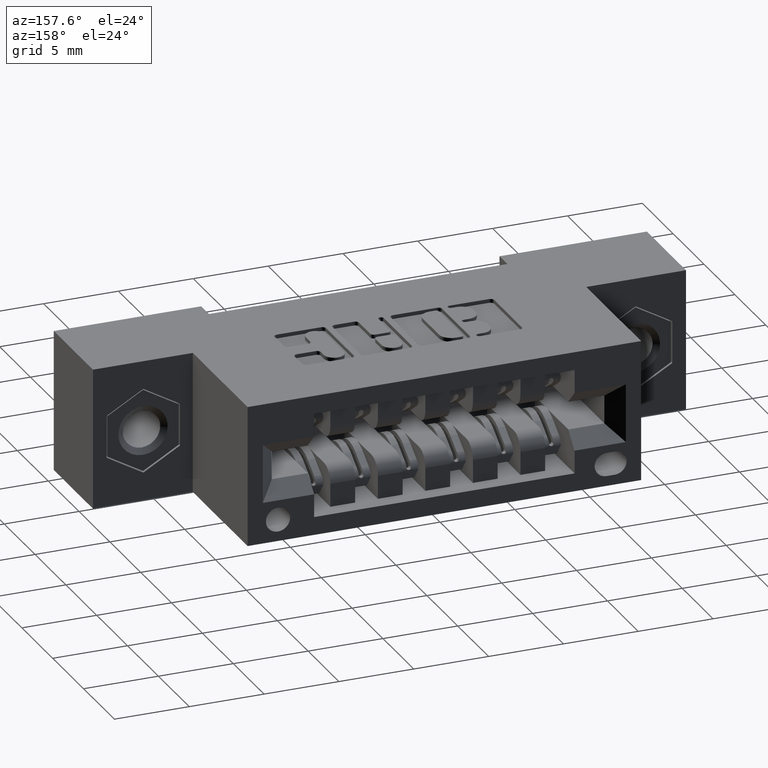
[diagram: clean part render]
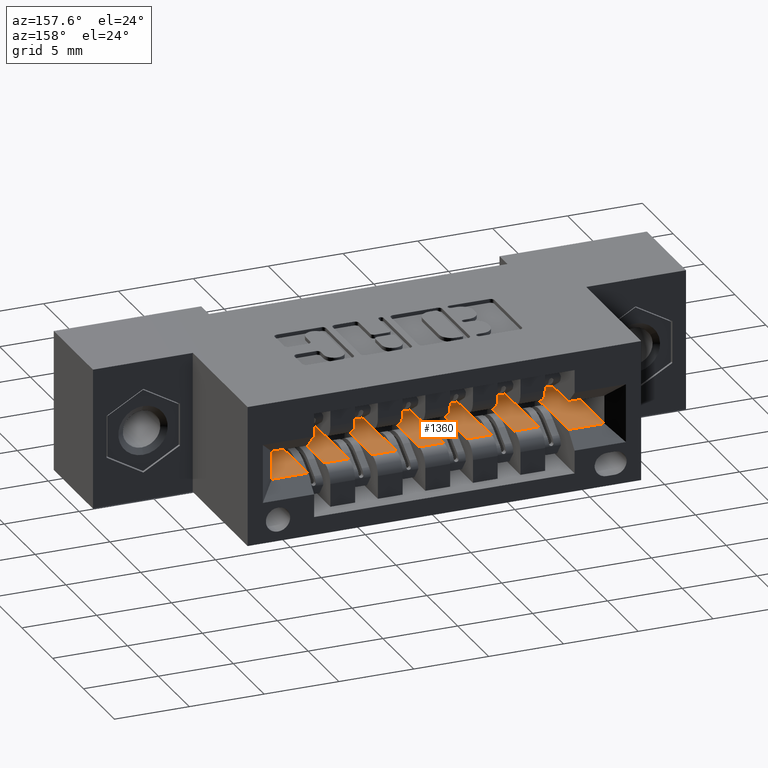
[diagram: same view with one face highlighted and labeled with its STEP entity id]
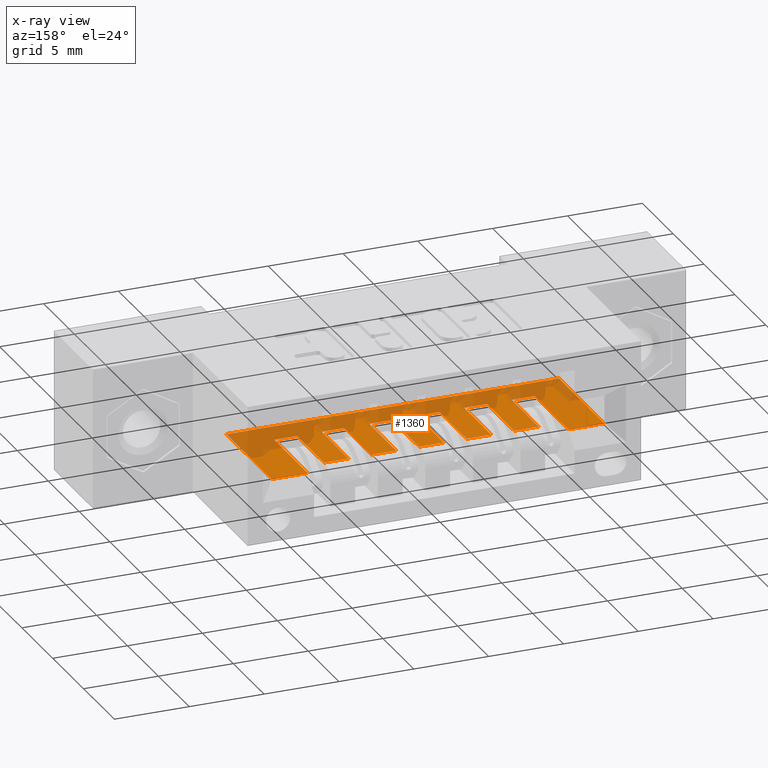
[diagram: x-ray of the same camera — body ghosted, the highlighted face saturated]
A machine part, auxiliary view. The second image highlights one B-rep face of the part: STEP entity #1360.
The next image is the same camera in x-ray: the body ghosted, the highlighted face saturated — about 44% of this face is hidden behind the body in this view.
In plain terms, the highlighted planar face has unit normal (0, 0, -1).
Its self-contained STEP definition (entity closure, byte-faithful):
#3 = AXIS2_PLACEMENT_3D ( 'NONE', #9654, #4967, #2679 ) ;
#43 = VECTOR ( 'NONE', #8289, 39.37007874015748100 ) ;
#65 = DIRECTION ( 'NONE',  ( 0.0000000000000000000, -1.000000000000000000, 0.0000000000000000000 ) ) ;
#185 = VECTOR ( 'NONE', #9659, 39.37007874015748100 ) ;
#191 = CARTESIAN_POINT ( 'NONE',  ( 0.6875000000000000000, 0.5179999999999996800, -0.2220000000000000900 ) ) ;
#221 = LINE ( 'NONE', #6507, #6819 ) ;
#222 = VECTOR ( 'NONE', #9416, 39.37007874015748100 ) ;
#252 = CARTESIAN_POINT ( 'NONE',  ( 1.062500000000000000, 0.5179999999999996800, -0.2220000000000000600 ) ) ;
#295 = ORIENTED_EDGE ( 'NONE', *, *, #2164, .F. ) ;
#438 = VECTOR ( 'NONE', #1218, 39.37007874015748100 ) ;
#549 = LINE ( 'NONE', #2056, #43 ) ;
#717 = EDGE_CURVE ( 'NONE', #1997, #9950, #5492, .T. ) ;
#722 = EDGE_CURVE ( 'NONE', #8810, #1705, #8170, .T. ) ;
#746 = VERTEX_POINT ( 'NONE', #7467 ) ;
#747 = CARTESIAN_POINT ( 'NONE',  ( 0.6224999999999999400, 0.2699999999999999100, -0.2220000000000000900 ) ) ;
#806 = CARTESIAN_POINT ( 'NONE',  ( 1.062500000000000000, 0.3450000000000001400, -0.2219999999999999800 ) ) ;
#818 = ORIENTED_EDGE ( 'NONE', *, *, #3464, .T. ) ;
#899 = EDGE_CURVE ( 'NONE', #1997, #3355, #3538, .T. ) ;
#912 = VECTOR ( 'NONE', #5191, 39.37007874015748100 ) ;
#935 = CARTESIAN_POINT ( 'NONE',  ( 0.5625000000000000000, 0.2699999999999999100, -0.2220000000000000900 ) ) ;
#942 = CARTESIAN_POINT ( 'NONE',  ( 0.4375000000000000600, 0.3450000000000001400, -0.2220000000000000600 ) ) ;
#1015 = CARTESIAN_POINT ( 'NONE',  ( 0.3425000000000000300, 0.2699999999999999100, -0.2220000000000000900 ) ) ;
#1042 = CARTESIAN_POINT ( 'NONE',  ( 0.8724999999999999400, 0.3450000000000001400, -0.2220000000000000900 ) ) ;
#1140 = LINE ( 'NONE', #747, #9712 ) ;
#1218 = DIRECTION ( 'NONE',  ( 1.000000000000000000, -0.0000000000000000000, -0.0000000000000000000 ) ) ;
#1266 = CARTESIAN_POINT ( 'NONE',  ( 0.3425000000000000300, 0.2699999999999999100, -0.2220000000000000900 ) ) ;
#1360 = ADVANCED_FACE ( 'NONE', ( #6071 ), #4211, .F. ) ;
#1361 = LINE ( 'NONE', #191, #5881 ) ;
#1371 = EDGE_CURVE ( 'NONE', #746, #8918, #2928, .T. ) ;
#1394 = CARTESIAN_POINT ( 'NONE',  ( 0.6874999999999998900, 0.3450000000000001400, -0.2220000000000000000 ) ) ;
#1399 = DIRECTION ( 'NONE',  ( 1.000000000000000000, -0.0000000000000000000, -0.0000000000000000000 ) ) ;
#1420 = EDGE_CURVE ( 'NONE', #8758, #9670, #8171, .T. ) ;
#1514 = VERTEX_POINT ( 'NONE', #6288 ) ;
#1542 = ORIENTED_EDGE ( 'NONE', *, *, #8031, .T. ) ;
#1573 = DIRECTION ( 'NONE',  ( 1.000000000000000000, -0.0000000000000000000, -0.0000000000000000000 ) ) ;
#1605 = DIRECTION ( 'NONE',  ( -1.000000000000000000, -0.0000000000000000000, -0.0000000000000000000 ) ) ;
#1629 = CARTESIAN_POINT ( 'NONE',  ( 0.7474999999999998300, 0.3450000000000001400, -0.2220000000000000900 ) ) ;
#1670 = VECTOR ( 'NONE', #7612, 39.37007874015748100 ) ;
#1683 = LINE ( 'NONE', #7749, #4254 ) ;
#1686 = LINE ( 'NONE', #8783, #5729 ) ;
#1687 = EDGE_CURVE ( 'NONE', #3029, #6044, #3894, .T. ) ;
#1705 = VERTEX_POINT ( 'NONE', #3101 ) ;
#1718 = EDGE_CURVE ( 'NONE', #8945, #1819, #221, .T. ) ;
#1806 = DIRECTION ( 'NONE',  ( 0.0000000000000000000, -1.000000000000000000, 0.0000000000000000000 ) ) ;
#1819 = VERTEX_POINT ( 'NONE', #8007 ) ;
#1822 = LINE ( 'NONE', #252, #222 ) ;
#1838 = CARTESIAN_POINT ( 'NONE',  ( 0.9375000000000000000, 0.5179999999999996800, -0.2220000000000000600 ) ) ;
#1850 = CARTESIAN_POINT ( 'NONE',  ( 0.9374999999999998900, 0.3450000000000001400, -0.2220000000000000000 ) ) ;
#1921 = ORIENTED_EDGE ( 'NONE', *, *, #3056, .T. ) ;
#1934 = LINE ( 'NONE', #806, #6334 ) ;
#1939 = VERTEX_POINT ( 'NONE', #3698 ) ;
#1952 = DIRECTION ( 'NONE',  ( 1.000000000000000000, -0.0000000000000000000, -0.0000000000000000000 ) ) ;
#1997 = VERTEX_POINT ( 'NONE', #6905 ) ;
#2033 = LINE ( 'NONE', #2150, #1670 ) ;
#2052 = CARTESIAN_POINT ( 'NONE',  ( 0.4975000000000000000, 0.3450000000000001400, -0.2220000000000000900 ) ) ;
#2056 = CARTESIAN_POINT ( 'NONE',  ( 1.122499999999999800, 0.2699999999999999100, -0.2220000000000000900 ) ) ;
#2092 = DIRECTION ( 'NONE',  ( -1.000000000000000000, -0.0000000000000000000, -0.0000000000000000000 ) ) ;
#2150 = CARTESIAN_POINT ( 'NONE',  ( 1.217500000000000000, 0.2699999999999999100, -0.2220000000000000900 ) ) ;
#2164 = EDGE_CURVE ( 'NONE', #9217, #3158, #3530, .T. ) ;
#2201 = CARTESIAN_POINT ( 'NONE',  ( 0.7475000000000000500, 0.5179999999999996800, -0.2220000000000000600 ) ) ;
#2236 = EDGE_CURVE ( 'NONE', #3493, #8918, #2788, .T. ) ;
#2282 = DIRECTION ( 'NONE',  ( 1.000000000000000000, -0.0000000000000000000, -0.0000000000000000000 ) ) ;
#2352 = DIRECTION ( 'NONE',  ( -1.000000000000000000, 0.0000000000000000000, 0.0000000000000000000 ) ) ;
#2467 = VERTEX_POINT ( 'NONE', #1042 ) ;
#2533 = VECTOR ( 'NONE', #1605, 39.37007874015748100 ) ;
#2543 = DIRECTION ( 'NONE',  ( 0.0000000000000000000, -1.000000000000000000, 0.0000000000000000000 ) ) ;
#2598 = EDGE_CURVE ( 'NONE', #7320, #2807, #8899, .T. ) ;
#2679 = DIRECTION ( 'NONE',  ( -1.000000000000000000, 0.0000000000000000000, -0.0000000000000000000 ) ) ;
#2760 = ORIENTED_EDGE ( 'NONE', *, *, #717, .T. ) ;
#2788 = LINE ( 'NONE', #1015, #9255 ) ;
#2807 = VERTEX_POINT ( 'NONE', #9196 ) ;
#2928 = LINE ( 'NONE', #4398, #7429 ) ;
#3029 = VERTEX_POINT ( 'NONE', #6369 ) ;
#3056 = EDGE_CURVE ( 'NONE', #9058, #3158, #9865, .T. ) ;
#3101 = CARTESIAN_POINT ( 'NONE',  ( 0.6224999999999999400, 0.3450000000000001400, -0.2220000000000000600 ) ) ;
#3158 = VERTEX_POINT ( 'NONE', #2052 ) ;
#3232 = EDGE_CURVE ( 'NONE', #7107, #7337, #2033, .T. ) ;
#3242 = CARTESIAN_POINT ( 'NONE',  ( 1.062500000000000000, 0.2699999999999999100, -0.2220000000000000900 ) ) ;
#3321 = ORIENTED_EDGE ( 'NONE', *, *, #4988, .F. ) ;
#3343 = VECTOR ( 'NONE', #8707, 39.37007874015748100 ) ;
#3355 = VERTEX_POINT ( 'NONE', #4001 ) ;
#3392 = DIRECTION ( 'NONE',  ( -0.0000000000000000000, 1.000000000000000000, -0.0000000000000000000 ) ) ;
#3445 = VECTOR ( 'NONE', #2282, 39.37007874015748100 ) ;
#3464 = EDGE_CURVE ( 'NONE', #9797, #9058, #4232, .T. ) ;
#3493 = VERTEX_POINT ( 'NONE', #1266 ) ;
#3502 = CARTESIAN_POINT ( 'NONE',  ( 0.5625000000000000000, 0.5179999999999996800, -0.2220000000000000900 ) ) ;
#3514 = EDGE_CURVE ( 'NONE', #7037, #1939, #549, .T. ) ;
#3530 = LINE ( 'NONE', #7609, #9643 ) ;
#3532 = DIRECTION ( 'NONE',  ( -1.000000000000000000, 0.0000000000000000000, 0.0000000000000000000 ) ) ;
#3538 = LINE ( 'NONE', #9308, #5853 ) ;
#3619 = ORIENTED_EDGE ( 'NONE', *, *, #7558, .T. ) ;
#3679 = LINE ( 'NONE', #8467, #3445 ) ;
#3698 = CARTESIAN_POINT ( 'NONE',  ( 1.122499999999999800, 0.3450000000000001400, -0.2220000000000000900 ) ) ;
#3708 = CARTESIAN_POINT ( 'NONE',  ( 0.5625000000000000000, 0.3450000000000001400, -0.2220000000000000600 ) ) ;
#3784 = DIRECTION ( 'NONE',  ( 1.000000000000000000, -0.0000000000000000000, -0.0000000000000000000 ) ) ;
#3894 = LINE ( 'NONE', #3242, #8925 ) ;
#3929 = ORIENTED_EDGE ( 'NONE', *, *, #7938, .F. ) ;
#4001 = CARTESIAN_POINT ( 'NONE',  ( 0.8124999999999998900, 0.3450000000000001400, -0.2220000000000000000 ) ) ;
#4211 = PLANE ( 'NONE',  #3 ) ;
#4232 = LINE ( 'NONE', #4350, #912 ) ;
#4254 = VECTOR ( 'NONE', #2352, 39.37007874015748100 ) ;
#4287 = CARTESIAN_POINT ( 'NONE',  ( 0.4975000000000000000, 0.5179999999999996800, -0.2220000000000000900 ) ) ;
#4304 = CARTESIAN_POINT ( 'NONE',  ( 0.8125000000000000000, 0.5179999999999996800, -0.2220000000000000600 ) ) ;
#4350 = CARTESIAN_POINT ( 'NONE',  ( 0.5625000000000000000, 0.5179999999999996800, -0.2220000000000000900 ) ) ;
#4390 = DIRECTION ( 'NONE',  ( 0.0000000000000000000, -1.000000000000000000, 0.0000000000000000000 ) ) ;
#4398 = CARTESIAN_POINT ( 'NONE',  ( 0.3425000000000000300, 0.5600000000000000500, -0.2220000000000000900 ) ) ;
#4477 = EDGE_CURVE ( 'NONE', #1514, #8758, #7624, .T. ) ;
#4479 = VECTOR ( 'NONE', #1806, 39.37007874015748100 ) ;
#4497 = VECTOR ( 'NONE', #3784, 39.37007874015748100 ) ;
#4505 = VECTOR ( 'NONE', #65, 39.37007874015748100 ) ;
#4533 = DIRECTION ( 'NONE',  ( 0.0000000000000000000, -1.000000000000000000, 0.0000000000000000000 ) ) ;
#4552 = EDGE_CURVE ( 'NONE', #8937, #1705, #1140, .T. ) ;
#4588 = DIRECTION ( 'NONE',  ( 0.0000000000000000000, -1.000000000000000000, 0.0000000000000000000 ) ) ;
#4699 = CARTESIAN_POINT ( 'NONE',  ( 1.062500000000000000, 0.3450000000000001400, -0.2219999999999999800 ) ) ;
#4861 = LINE ( 'NONE', #7926, #2533 ) ;
#4967 = DIRECTION ( 'NONE',  ( 0.0000000000000000000, 0.0000000000000000000, -1.000000000000000000 ) ) ;
#4988 = EDGE_CURVE ( 'NONE', #746, #9217, #7862, .T. ) ;
#5178 = ORIENTED_EDGE ( 'NONE', *, *, #1687, .F. ) ;
#5191 = DIRECTION ( 'NONE',  ( -1.000000000000000000, -0.0000000000000000000, -0.0000000000000000000 ) ) ;
#5343 = VERTEX_POINT ( 'NONE', #9127 ) ;
#5492 = LINE ( 'NONE', #4304, #6080 ) ;
#5518 = ORIENTED_EDGE ( 'NONE', *, *, #2236, .F. ) ;
#5615 = LINE ( 'NONE', #935, #4505 ) ;
#5729 = VECTOR ( 'NONE', #2092, 39.37007874015748100 ) ;
#5730 = EDGE_CURVE ( 'NONE', #1514, #8937, #1361, .T. ) ;
#5824 = CARTESIAN_POINT ( 'NONE',  ( 0.5625000000000000000, 0.3450000000000001400, -0.2220000000000000600 ) ) ;
#5853 = VECTOR ( 'NONE', #4533, 39.37007874015748100 ) ;
#5881 = VECTOR ( 'NONE', #8817, 39.37007874015748100 ) ;
#5931 = EDGE_CURVE ( 'NONE', #3355, #2467, #3679, .T. ) ;
#5966 = CARTESIAN_POINT ( 'NONE',  ( 0.6874999999999998900, 0.3450000000000001400, -0.2220000000000000000 ) ) ;
#6044 = VERTEX_POINT ( 'NONE', #4699 ) ;
#6071 = FACE_OUTER_BOUND ( 'NONE', #8276, .T. ) ;
#6080 = VECTOR ( 'NONE', #6573, 39.37007874015748100 ) ;
#6188 = CARTESIAN_POINT ( 'NONE',  ( 1.217500000000000000, 0.2699999999999999100, -0.2220000000000000900 ) ) ;
#6248 = ORIENTED_EDGE ( 'NONE', *, *, #3232, .T. ) ;
#6272 = CARTESIAN_POINT ( 'NONE',  ( 1.217500000000000000, 0.5600000000000000500, -0.2220000000000000900 ) ) ;
#6288 = CARTESIAN_POINT ( 'NONE',  ( 0.6875000000000000000, 0.5179999999999996800, -0.2220000000000000900 ) ) ;
#6294 = VECTOR ( 'NONE', #4390, 39.37007874015748100 ) ;
#6334 = VECTOR ( 'NONE', #1573, 39.37007874015748100 ) ;
#6369 = CARTESIAN_POINT ( 'NONE',  ( 1.062500000000000000, 0.5179999999999996800, -0.2220000000000000600 ) ) ;
#6507 = CARTESIAN_POINT ( 'NONE',  ( 0.9374999999999998900, 0.2699999999999999100, -0.2220000000000000900 ) ) ;
#6573 = DIRECTION ( 'NONE',  ( -1.000000000000000000, -0.0000000000000000000, -0.0000000000000000000 ) ) ;
#6709 = LINE ( 'NONE', #7709, #9022 ) ;
#6819 = VECTOR ( 'NONE', #2543, 39.37007874015748100 ) ;
#6844 = ORIENTED_EDGE ( 'NONE', *, *, #722, .F. ) ;
#6878 = ORIENTED_EDGE ( 'NONE', *, *, #3514, .T. ) ;
#6905 = CARTESIAN_POINT ( 'NONE',  ( 0.8125000000000000000, 0.5179999999999996800, -0.2220000000000000600 ) ) ;
#6912 = ORIENTED_EDGE ( 'NONE', *, *, #4477, .F. ) ;
#6936 = EDGE_CURVE ( 'NONE', #9797, #8810, #5615, .T. ) ;
#7029 = ORIENTED_EDGE ( 'NONE', *, *, #5730, .T. ) ;
#7037 = VERTEX_POINT ( 'NONE', #7381 ) ;
#7086 = ORIENTED_EDGE ( 'NONE', *, *, #9219, .T. ) ;
#7107 = VERTEX_POINT ( 'NONE', #6188 ) ;
#7115 = CARTESIAN_POINT ( 'NONE',  ( 0.9974999999999999400, 0.5179999999999996800, -0.2220000000000000600 ) ) ;
#7155 = CARTESIAN_POINT ( 'NONE',  ( 0.3425000000000000300, 0.5600000000000000500, -0.2220000000000000900 ) ) ;
#7320 = VERTEX_POINT ( 'NONE', #7115 ) ;
#7337 = VERTEX_POINT ( 'NONE', #6272 ) ;
#7368 = ORIENTED_EDGE ( 'NONE', *, *, #8682, .T. ) ;
#7381 = CARTESIAN_POINT ( 'NONE',  ( 1.122499999999999800, 0.5600000000000000500, -0.2220000000000000900 ) ) ;
#7426 = VECTOR ( 'NONE', #1952, 39.37007874015748100 ) ;
#7429 = VECTOR ( 'NONE', #3532, 39.37007874015748100 ) ;
#7467 = CARTESIAN_POINT ( 'NONE',  ( 0.4375000000000000600, 0.5600000000000000500, -0.2220000000000000900 ) ) ;
#7558 = EDGE_CURVE ( 'NONE', #5343, #2467, #6709, .T. ) ;
#7569 = ORIENTED_EDGE ( 'NONE', *, *, #4552, .T. ) ;
#7609 = CARTESIAN_POINT ( 'NONE',  ( 0.4375000000000000600, 0.3450000000000001400, -0.2220000000000000600 ) ) ;
#7612 = DIRECTION ( 'NONE',  ( -0.0000000000000000000, 1.000000000000000000, -0.0000000000000000000 ) ) ;
#7624 = LINE ( 'NONE', #8046, #6294 ) ;
#7709 = CARTESIAN_POINT ( 'NONE',  ( 0.8724999999999999400, 0.2699999999999999100, -0.2220000000000000900 ) ) ;
#7731 = ORIENTED_EDGE ( 'NONE', *, *, #899, .F. ) ;
#7735 = ORIENTED_EDGE ( 'NONE', *, *, #9621, .T. ) ;
#7749 = CARTESIAN_POINT ( 'NONE',  ( 0.3425000000000000300, 0.5600000000000000500, -0.2220000000000000900 ) ) ;
#7759 = ORIENTED_EDGE ( 'NONE', *, *, #2598, .T. ) ;
#7862 = LINE ( 'NONE', #7958, #3343 ) ;
#7883 = CARTESIAN_POINT ( 'NONE',  ( 0.7474999999999998300, 0.2699999999999999100, -0.2220000000000000900 ) ) ;
#7926 = CARTESIAN_POINT ( 'NONE',  ( 0.9375000000000000000, 0.5179999999999996800, -0.2220000000000000600 ) ) ;
#7938 = EDGE_CURVE ( 'NONE', #1819, #2807, #9771, .T. ) ;
#7958 = CARTESIAN_POINT ( 'NONE',  ( 0.4375000000000000600, 0.2699999999999999100, -0.2220000000000000900 ) ) ;
#8007 = CARTESIAN_POINT ( 'NONE',  ( 0.9374999999999998900, 0.3450000000000001400, -0.2220000000000000000 ) ) ;
#8031 = EDGE_CURVE ( 'NONE', #9950, #9670, #8169, .T. ) ;
#8046 = CARTESIAN_POINT ( 'NONE',  ( 0.6874999999999998900, 0.2699999999999999100, -0.2220000000000000900 ) ) ;
#8102 = CARTESIAN_POINT ( 'NONE',  ( 0.6224999999999999400, 0.5179999999999996800, -0.2220000000000000900 ) ) ;
#8169 = LINE ( 'NONE', #7883, #8387 ) ;
#8170 = LINE ( 'NONE', #5824, #7426 ) ;
#8171 = LINE ( 'NONE', #1394, #4497 ) ;
#8276 = EDGE_LOOP ( 'NONE', ( #3321, #8882, #5518, #8940, #6248, #7368, #6878, #8494, #5178, #7735, #7759, #3929, #8574, #7086, #3619, #8831, #7731, #2760, #1542, #8689, #6912, #7029, #7569, #6844, #9827, #818, #1921, #295 ) ) ;
#8289 = DIRECTION ( 'NONE',  ( 0.0000000000000000000, -1.000000000000000000, 0.0000000000000000000 ) ) ;
#8387 = VECTOR ( 'NONE', #8667, 39.37007874015748100 ) ;
#8467 = CARTESIAN_POINT ( 'NONE',  ( 0.8124999999999998900, 0.3450000000000001400, -0.2220000000000000000 ) ) ;
#8494 = ORIENTED_EDGE ( 'NONE', *, *, #8670, .F. ) ;
#8574 = ORIENTED_EDGE ( 'NONE', *, *, #1718, .F. ) ;
#8586 = DIRECTION ( 'NONE',  ( 0.0000000000000000000, -1.000000000000000000, 0.0000000000000000000 ) ) ;
#8617 = DIRECTION ( 'NONE',  ( 0.0000000000000000000, -1.000000000000000000, 0.0000000000000000000 ) ) ;
#8667 = DIRECTION ( 'NONE',  ( 0.0000000000000000000, -1.000000000000000000, 0.0000000000000000000 ) ) ;
#8670 = EDGE_CURVE ( 'NONE', #6044, #1939, #1934, .T. ) ;
#8682 = EDGE_CURVE ( 'NONE', #7337, #7037, #1683, .T. ) ;
#8689 = ORIENTED_EDGE ( 'NONE', *, *, #1420, .F. ) ;
#8707 = DIRECTION ( 'NONE',  ( 0.0000000000000000000, -1.000000000000000000, 0.0000000000000000000 ) ) ;
#8758 = VERTEX_POINT ( 'NONE', #5966 ) ;
#8783 = CARTESIAN_POINT ( 'NONE',  ( 0.3425000000000000300, 0.2699999999999999100, -0.2220000000000000900 ) ) ;
#8810 = VERTEX_POINT ( 'NONE', #3708 ) ;
#8817 = DIRECTION ( 'NONE',  ( -1.000000000000000000, -0.0000000000000000000, -0.0000000000000000000 ) ) ;
#8831 = ORIENTED_EDGE ( 'NONE', *, *, #5931, .F. ) ;
#8882 = ORIENTED_EDGE ( 'NONE', *, *, #1371, .T. ) ;
#8899 = LINE ( 'NONE', #9637, #4479 ) ;
#8903 = CARTESIAN_POINT ( 'NONE',  ( 0.4975000000000000000, 0.2699999999999999100, -0.2220000000000000900 ) ) ;
#8918 = VERTEX_POINT ( 'NONE', #7155 ) ;
#8925 = VECTOR ( 'NONE', #8586, 39.37007874015748100 ) ;
#8937 = VERTEX_POINT ( 'NONE', #8102 ) ;
#8940 = ORIENTED_EDGE ( 'NONE', *, *, #10064, .F. ) ;
#8945 = VERTEX_POINT ( 'NONE', #1838 ) ;
#9022 = VECTOR ( 'NONE', #4588, 39.37007874015748100 ) ;
#9058 = VERTEX_POINT ( 'NONE', #4287 ) ;
#9127 = CARTESIAN_POINT ( 'NONE',  ( 0.8725000000000000500, 0.5179999999999996800, -0.2220000000000000600 ) ) ;
#9196 = CARTESIAN_POINT ( 'NONE',  ( 0.9974999999999999400, 0.3450000000000001400, -0.2220000000000000900 ) ) ;
#9217 = VERTEX_POINT ( 'NONE', #942 ) ;
#9219 = EDGE_CURVE ( 'NONE', #8945, #5343, #4861, .T. ) ;
#9255 = VECTOR ( 'NONE', #3392, 39.37007874015748100 ) ;
#9308 = CARTESIAN_POINT ( 'NONE',  ( 0.8124999999999998900, 0.2699999999999999100, -0.2220000000000000900 ) ) ;
#9416 = DIRECTION ( 'NONE',  ( -1.000000000000000000, -0.0000000000000000000, -0.0000000000000000000 ) ) ;
#9621 = EDGE_CURVE ( 'NONE', #3029, #7320, #1822, .T. ) ;
#9637 = CARTESIAN_POINT ( 'NONE',  ( 0.9974999999999999400, 0.2699999999999999100, -0.2220000000000000900 ) ) ;
#9643 = VECTOR ( 'NONE', #1399, 39.37007874015748100 ) ;
#9654 = CARTESIAN_POINT ( 'NONE',  ( 0.3425000000000000300, 0.2699999999999999100, -0.2220000000000000900 ) ) ;
#9659 = DIRECTION ( 'NONE',  ( 0.0000000000000000000, -1.000000000000000000, 0.0000000000000000000 ) ) ;
#9670 = VERTEX_POINT ( 'NONE', #1629 ) ;
#9712 = VECTOR ( 'NONE', #8617, 39.37007874015748100 ) ;
#9771 = LINE ( 'NONE', #1850, #438 ) ;
#9797 = VERTEX_POINT ( 'NONE', #3502 ) ;
#9827 = ORIENTED_EDGE ( 'NONE', *, *, #6936, .F. ) ;
#9865 = LINE ( 'NONE', #8903, #185 ) ;
#9950 = VERTEX_POINT ( 'NONE', #2201 ) ;
#10064 = EDGE_CURVE ( 'NONE', #7107, #3493, #1686, .T. ) ;